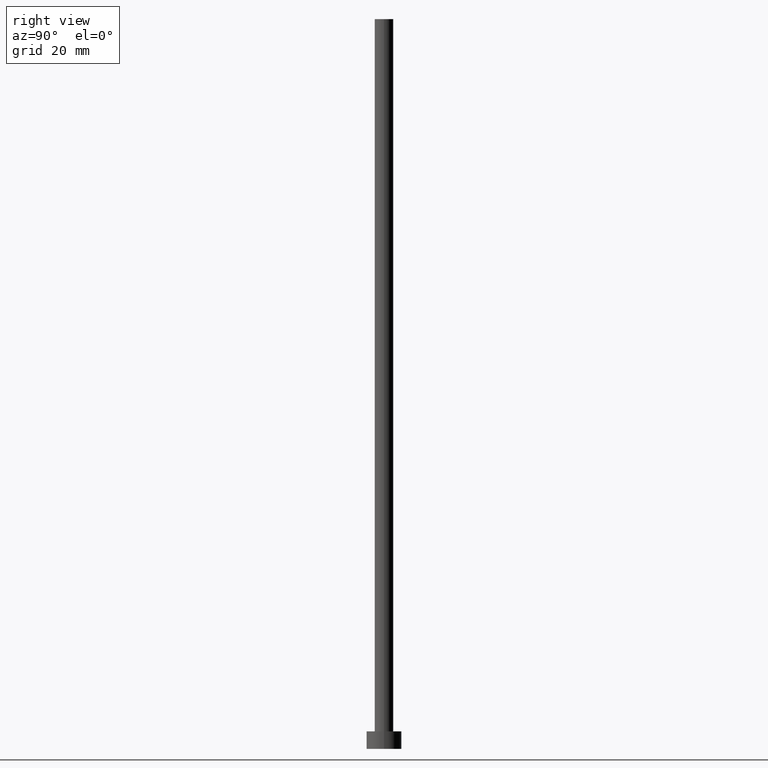
[diagram: clean part render]
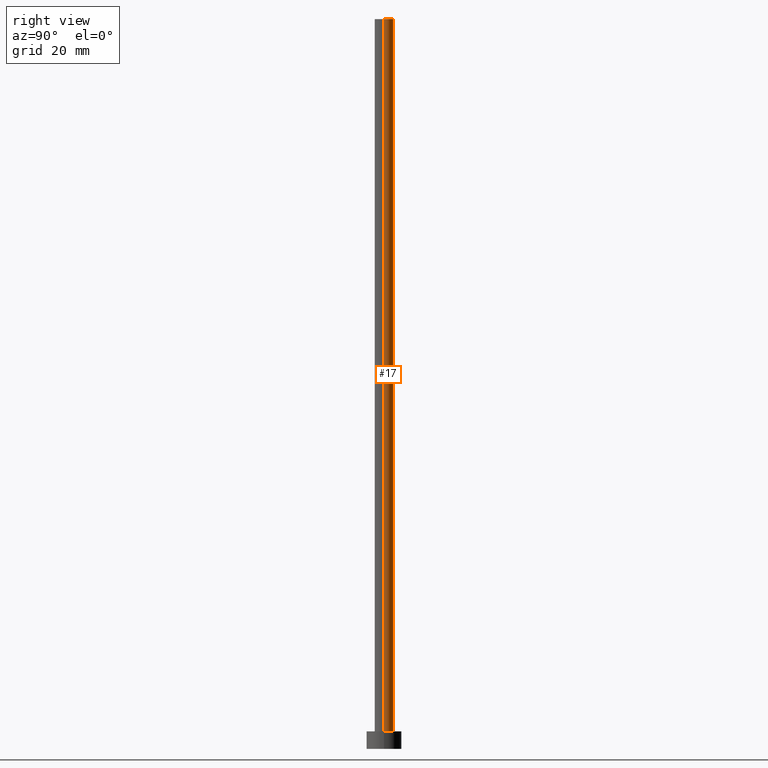
[diagram: same view with one face highlighted and labeled with its STEP entity id]
A machine part, right view. The second image highlights one B-rep face of the part: STEP entity #17.
In plain terms, the highlighted cylindrical surface (edge-blend (fillet) strip) has radius 1.6 mm, axis along (-0, -0, -1).
Its self-contained STEP definition (entity closure, byte-faithful):
#8 = VERTEX_POINT ( 'NONE', #9 ) ;
#9 = CARTESIAN_POINT ( 'NONE',  ( -1.600000000000000089, 0.000000000000000000, 3.000000000000000000 ) ) ;
#12 = CIRCLE ( 'NONE', #185, 1.600000000000000089 ) ;
#17 = ADVANCED_FACE ( 'NONE', ( #146 ), #207, .T. ) ;
#26 = EDGE_LOOP ( 'NONE', ( #121, #225, #83, #177 ) ) ;
#29 = LINE ( 'NONE', #148, #46 ) ;
#30 = CARTESIAN_POINT ( 'NONE',  ( 0.000000000000000000, 0.000000000000000000, 125.0000000000000000 ) ) ;
#33 = EDGE_CURVE ( 'NONE', #144, #229, #29, .T. ) ;
#41 = AXIS2_PLACEMENT_3D ( 'NONE', #91, #215, #114 ) ;
#46 = VECTOR ( 'NONE', #231, 1000.000000000000000 ) ;
#53 = CARTESIAN_POINT ( 'NONE',  ( -1.600000000000000089, 0.000000000000000000, 125.0000000000000000 ) ) ;
#66 = DIRECTION ( 'NONE',  ( -1.000000000000000000, 0.000000000000000000, 0.000000000000000000 ) ) ;
#71 = DIRECTION ( 'NONE',  ( -0.000000000000000000, -0.000000000000000000, -1.000000000000000000 ) ) ;
#83 = ORIENTED_EDGE ( 'NONE', *, *, #180, .T. ) ;
#91 = CARTESIAN_POINT ( 'NONE',  ( 0.000000000000000000, 0.000000000000000000, 125.0000000000000000 ) ) ;
#92 = DIRECTION ( 'NONE',  ( 1.000000000000000000, 0.000000000000000000, 0.000000000000000000 ) ) ;
#106 = EDGE_CURVE ( 'NONE', #139, #8, #236, .T. ) ;
#114 = DIRECTION ( 'NONE',  ( 1.000000000000000000, 0.000000000000000000, 0.000000000000000000 ) ) ;
#121 = ORIENTED_EDGE ( 'NONE', *, *, #147, .F. ) ;
#134 = CARTESIAN_POINT ( 'NONE',  ( 0.000000000000000000, 0.000000000000000000, 3.000000000000000000 ) ) ;
#139 = VERTEX_POINT ( 'NONE', #53 ) ;
#144 = VERTEX_POINT ( 'NONE', #153 ) ;
#146 = FACE_OUTER_BOUND ( 'NONE', #26, .T. ) ;
#147 = EDGE_CURVE ( 'NONE', #144, #139, #213, .T. ) ;
#148 = CARTESIAN_POINT ( 'NONE',  ( 1.600000000000000089, 1.959434878635764737E-16, 125.0000000000000000 ) ) ;
#153 = CARTESIAN_POINT ( 'NONE',  ( 1.600000000000000089, 1.959434878635764737E-16, 125.0000000000000000 ) ) ;
#161 = VECTOR ( 'NONE', #71, 1000.000000000000000 ) ;
#177 = ORIENTED_EDGE ( 'NONE', *, *, #106, .F. ) ;
#180 = EDGE_CURVE ( 'NONE', #229, #8, #12, .T. ) ;
#185 = AXIS2_PLACEMENT_3D ( 'NONE', #134, #196, #92 ) ;
#196 = DIRECTION ( 'NONE',  ( 0.000000000000000000, 0.000000000000000000, 1.000000000000000000 ) ) ;
#207 = CYLINDRICAL_SURFACE ( 'NONE', #226, 1.600000000000000089 ) ;
#213 = CIRCLE ( 'NONE', #41, 1.600000000000000089 ) ;
#214 = CARTESIAN_POINT ( 'NONE',  ( 1.600000000000000089, 1.959434878635764737E-16, 3.000000000000000000 ) ) ;
#215 = DIRECTION ( 'NONE',  ( 0.000000000000000000, 0.000000000000000000, 1.000000000000000000 ) ) ;
#225 = ORIENTED_EDGE ( 'NONE', *, *, #33, .T. ) ;
#226 = AXIS2_PLACEMENT_3D ( 'NONE', #30, #248, #66 ) ;
#229 = VERTEX_POINT ( 'NONE', #214 ) ;
#231 = DIRECTION ( 'NONE',  ( -0.000000000000000000, -0.000000000000000000, -1.000000000000000000 ) ) ;
#236 = LINE ( 'NONE', #250, #161 ) ;
#248 = DIRECTION ( 'NONE',  ( -0.000000000000000000, -0.000000000000000000, -1.000000000000000000 ) ) ;
#250 = CARTESIAN_POINT ( 'NONE',  ( -1.600000000000000089, 0.000000000000000000, 125.0000000000000000 ) ) ;